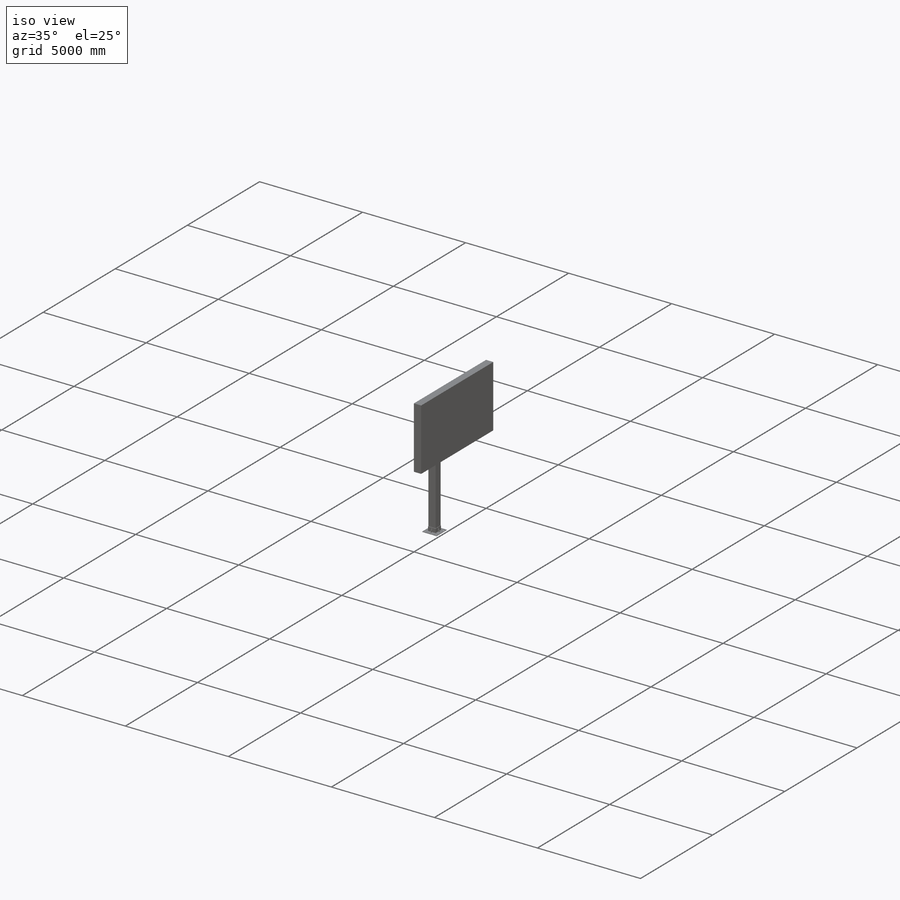
[diagram: iso view]
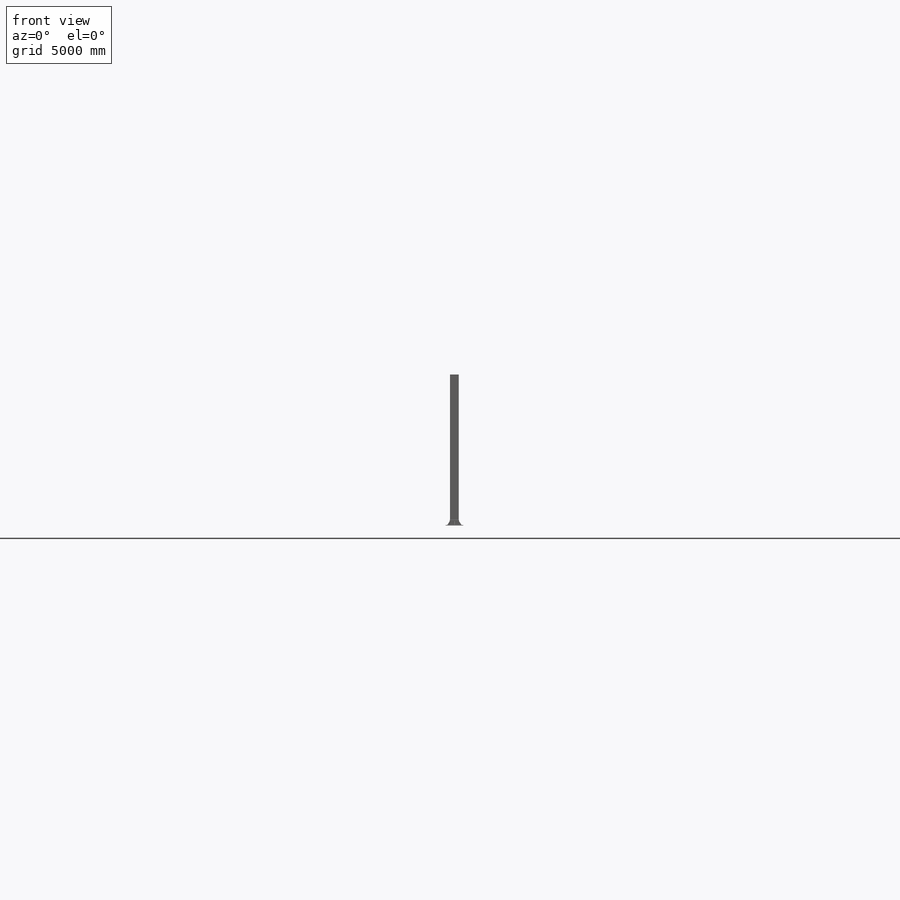
[diagram: front view]
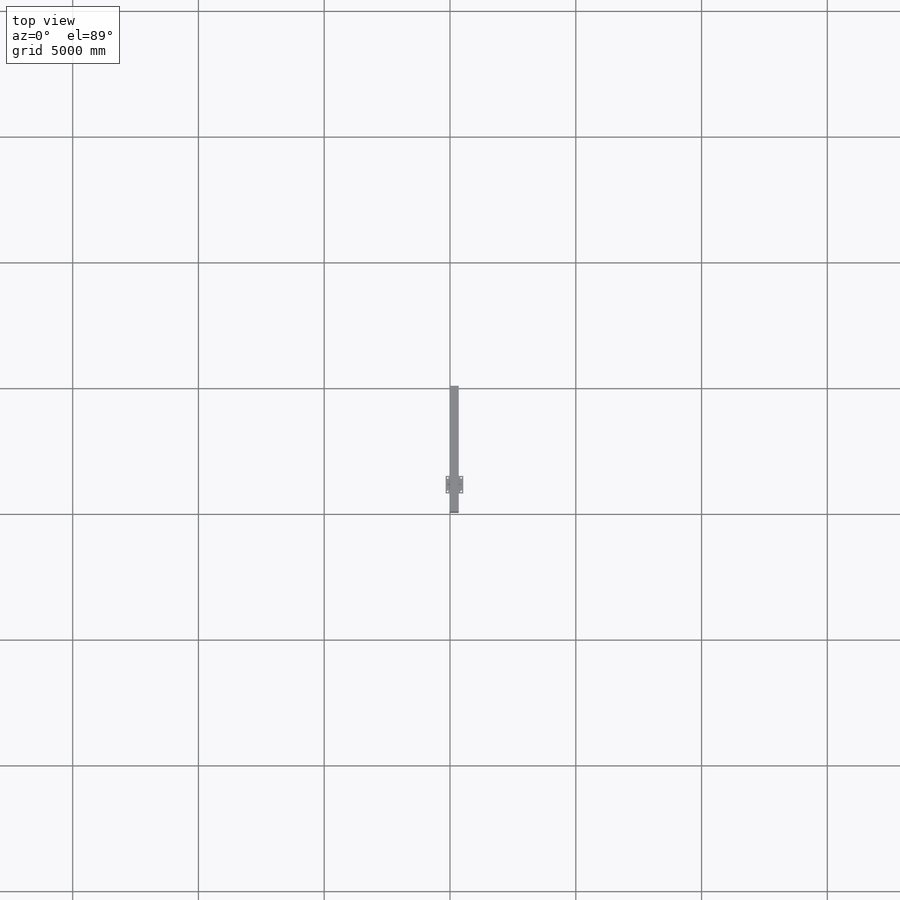
[diagram: top view]
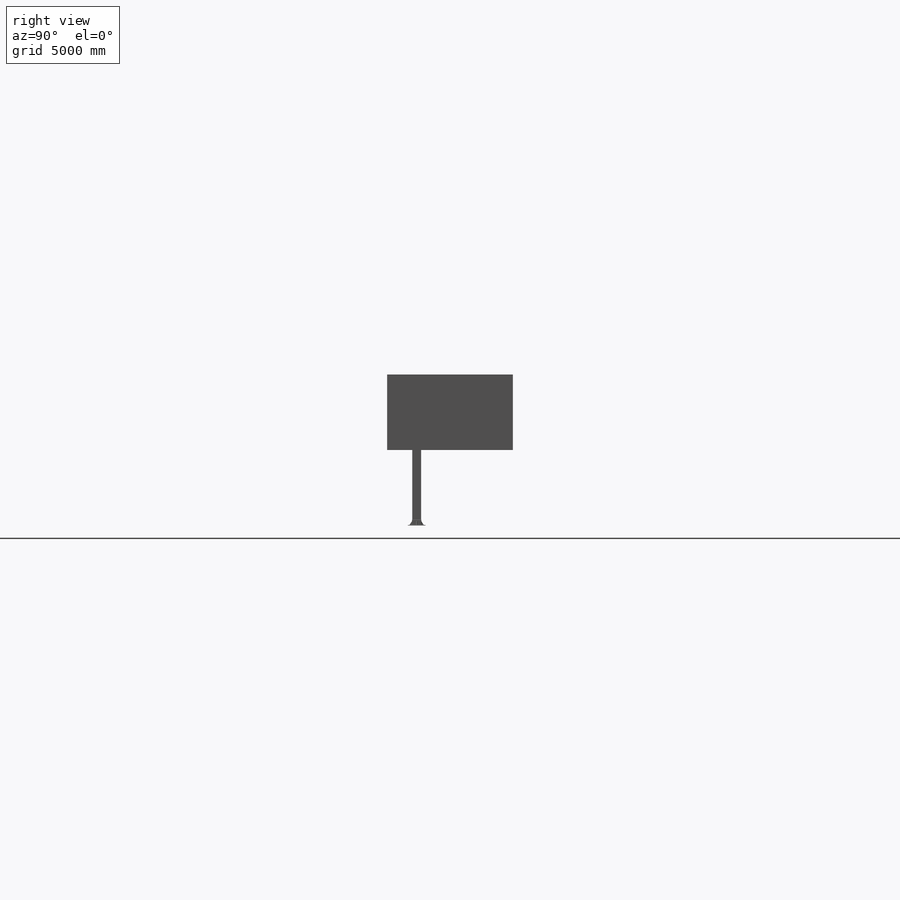
[diagram: right view]
SOLIDWORKS PART (.sldprt)
format: sldprt  version: not decoded by parser v0  size: 855,040 bytes
history: native  units: mm
features: sketch x29, chamfer x16, delete_body x4, material x2, extrude x2, cut_extrude x2, pattern_circular x2, plane x1 + 4 further entries (+288 scaffold rows collapsed)
feature tree (350):
  scaffold x288  (default folders/planes/origin — collapsed)
  material  "Материал <не указан>"
  plane  "Спереди"  Offset=0 Index=0
  sketch  "Эскиз1"  dims[D1=5000.0mm D2=3000.0mm]
  sketch  "Эскиз2"  dims[D1=0.0mm]
  sketch  "Эскиз3"
  sketch  "Эскиз4"
  sketch  "Эскиз5"
  sketch  "Эскиз6"  dims[D1=1000.0mm]
  "Поверхность-Вытянуть1"
  sketch  "Эскиз7"
  sketch  "Эскиз8"
  sketch  "Эскиз9"
  "Поверхность-Вытянуть2"
  delete_body  "Тело-Удалить2"
  delete_body  "Тело-Удалить3"
  delete_body  "Тело-Удалить4"
  sketch  "Эскиз16"
  sketch  "Эскиз17"
  sketch  "Эскиз19"
  sketch  "Эскиз20"
  sketch  "Эскиз21"
  sketch  "Эскиз23"
  sketch  "Эскиз24"
  sketch  "Эскиз25"
  delete_body  "Тело-Удалить5"
  sketch  "Эскиз26"
  sketch  "Эскиз27"
  sketch  "Эскиз28"
  sketch  "Эскиз29"
  sketch  "Эскиз30"
  sketch  "Эскиз31"
  sketch  "Эскиз32"
  sketch  "Эскиз10"  dims[D2=10.0mm D1=10.0mm]
  extrude  "Вытянуть1"  Depth=200mm
  sketch  "Эскиз11"  dims[D2=70.0mm D1=700.0mm D3=100.0mm]
  extrude  "Вытянуть2"  Depth=20mm
  sketch  "Эскиз12"  dims[D1=70.0mm]
  cut_extrude  "Вырез-Вытянуть1"  [1 undecoded]
  pattern_circular  "Круговой массив1"  Count=4 Angle=360deg
  sketch  "Эскиз13"  dims[D1=100.0mm D2=150.0mm]
  cut_extrude  "Вытянуть3"  Depth=10mm
  pattern_circular  "Круговой массив2"  Count=4 Angle=360deg
  chamfer  "Фаска1"  Distance=10mm Angle=45deg
  "ModelUUID"  Boundary Conditions Data=0
  chamfer  "Придать толщину20"  Distance=10mm
  chamfer  "Придать толщину21"  Distance=10mm
  chamfer  "Придать толщину22"  Distance=10mm
  chamfer  "Придать толщину23"  Distance=10mm
  chamfer  "Придать толщину24"  Distance=10mm
  chamfer  "Придать толщину25"  Distance=10mm
  chamfer  "Придать толщину26"  Distance=10mm
  chamfer  "Придать толщину27"  Distance=10mm
  chamfer  "Придать толщину28"  Distance=5mm
  chamfer  "Придать толщину29"  Distance=10mm
  chamfer  "Придать толщину30"  Distance=10mm
  chamfer  "Придать толщину31"  Distance=10mm
  chamfer  "Придать толщину32"  Distance=10mm
  chamfer  "Придать толщину33"  Distance=10mm
  chamfer  "Придать толщину34"  Distance=10mm
  "UUID"  Model UUID=0
  sketch  "Эскиз35"  dims[D1=5000.0mm D2=10000.0mm D3=15000.0mm D4=15000.0mm]
  material  "Index"  CosFW_CW=0
decode coverage: 29 of 55 modeling features carry decoded parameters; 4 rows unclassified (native names shown)
note: 1 parameter value undecoded
note: suppression state not decoded; provenance and decode notes live in map.json
